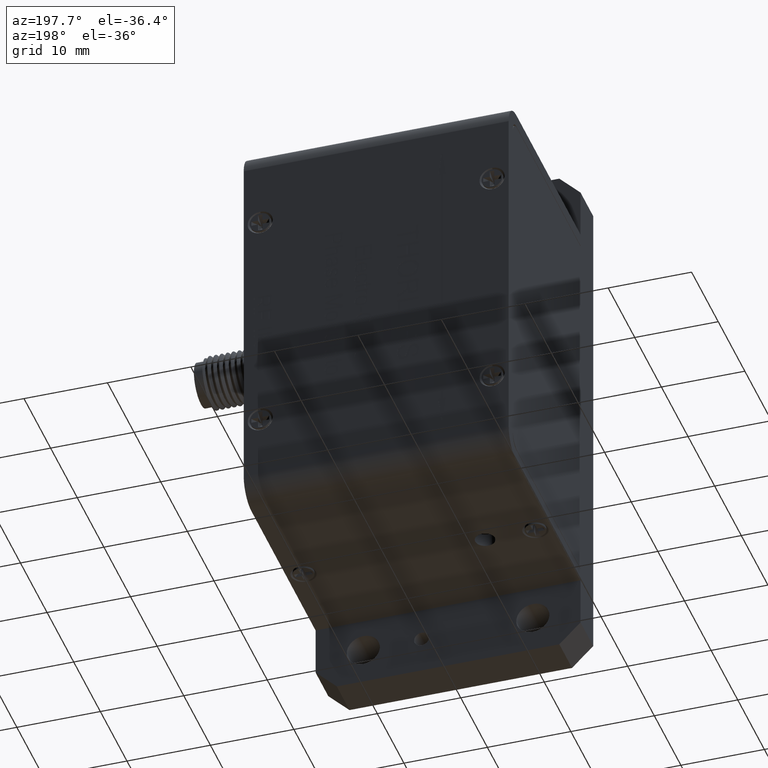
[diagram: clean part render]
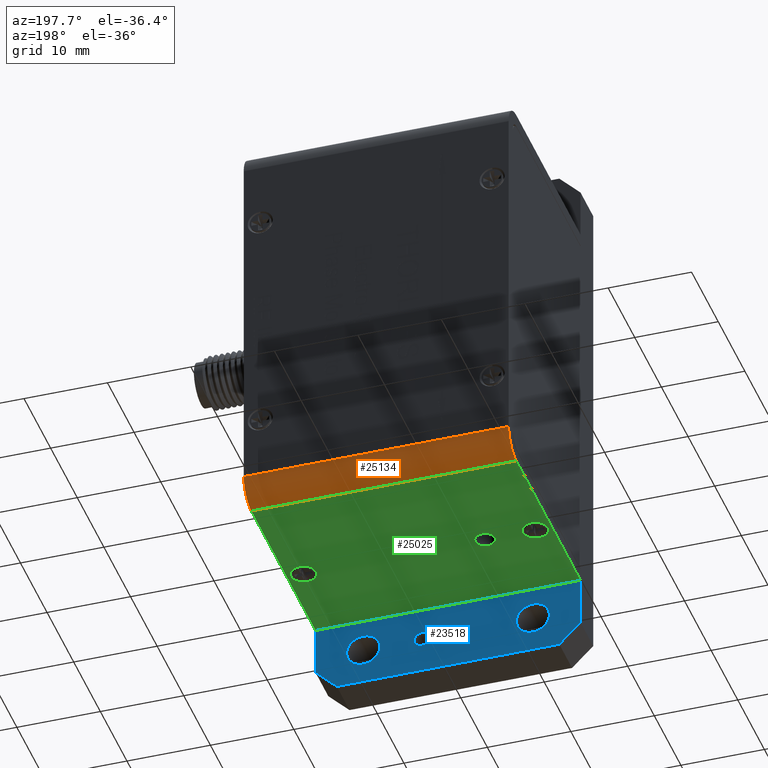
[diagram: same view with three faces highlighted in distinct colors, each labeled with its STEP entity id]
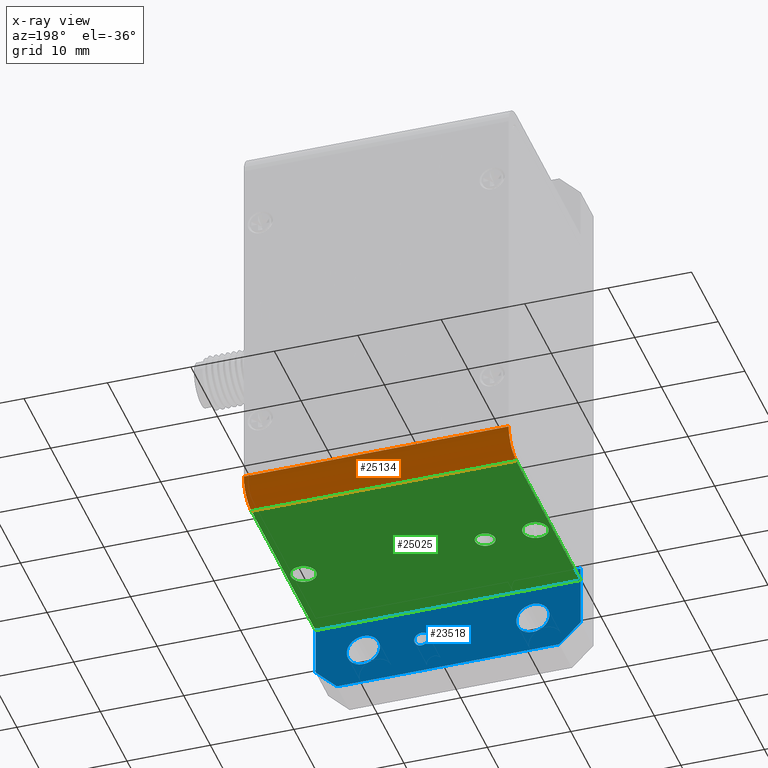
[diagram: x-ray of the same camera — body ghosted, the three highlighted faces saturated]
A machine part, auxiliary view with three faces highlighted in distinct colors.
The next image is the same camera in x-ray (body ghosted, the three faces saturated) — at least one of them is partly hidden behind the body in this view.
Their STEP definitions:

[orange] entity #25134 — the highlighted cylindrical surface (edge-blend (fillet) strip) has radius 2.8575 mm, axis along (-1, -0, -0).
#8734 = DIRECTION ( 'NONE',  ( -1.000000000000000000, -0.0000000000000000000, -0.0000000000000000000 ) ) ;
#8736 = VECTOR ( 'NONE', #8734, 1000.000000000000000 ) ;
#8737 = CARTESIAN_POINT ( 'NONE',  ( 15.87500000000000400, 31.76269999999999200, -21.65349999999999000 ) ) ;
#8738 = LINE ( 'NONE', #8737, #8736 ) ;
#9025 = CARTESIAN_POINT ( 'NONE',  ( 15.87500000000000400, 31.76269999999999200, -21.65349999999999000 ) ) ;
#13158 = EDGE_CURVE ( 'NONE', #13175, #35431, #8738, .T. ) ;
#13175 = VERTEX_POINT ( 'NONE', #9025 ) ;
#25024 = VERTEX_POINT ( 'NONE', #41332 ) ;
#25039 = EDGE_CURVE ( 'NONE', #25024, #25045, #41405, .T. ) ;
#25045 = VERTEX_POINT ( 'NONE', #41401 ) ;
#25115 = EDGE_LOOP ( 'NONE', ( #25122, #25117, #25136, #25135 ) ) ;
#25117 = ORIENTED_EDGE ( 'NONE', *, *, #13158, .F. ) ;
#25122 = ORIENTED_EDGE ( 'NONE', *, *, #25128, .T. ) ;
#25128 = EDGE_CURVE ( 'NONE', #25045, #35431, #41552, .T. ) ;
#25133 = EDGE_CURVE ( 'NONE', #25024, #13175, #41585, .T. ) ;
#25134 = ADVANCED_FACE ( 'NONE', ( #41624 ), #41627, .T. ) ;
#25135 = ORIENTED_EDGE ( 'NONE', *, *, #25039, .T. ) ;
#25136 = ORIENTED_EDGE ( 'NONE', *, *, #25133, .F. ) ;
#28008 = CARTESIAN_POINT ( 'NONE',  ( -15.87499999999999600, 31.76269999999999200, -21.65349999999999000 ) ) ;
#35431 = VERTEX_POINT ( 'NONE', #28008 ) ;
#41332 = CARTESIAN_POINT ( 'NONE',  ( 15.87500000000000400, 28.90520000000000100, -24.51099999999998900 ) ) ;
#41358 = CARTESIAN_POINT ( 'NONE',  ( 15.87500000000000400, 28.90520000000000100, -24.51099999999998900 ) ) ;
#41401 = CARTESIAN_POINT ( 'NONE',  ( -15.87499999999999600, 28.90520000000000100, -24.51099999999998900 ) ) ;
#41403 = DIRECTION ( 'NONE',  ( -1.000000000000000000, -0.0000000000000000000, -0.0000000000000000000 ) ) ;
#41404 = VECTOR ( 'NONE', #41403, 1000.000000000000000 ) ;
#41405 = LINE ( 'NONE', #41358, #41404 ) ;
#41552 = CIRCLE ( 'NONE', #41586, 2.857499999999999000 ) ;
#41560 = CARTESIAN_POINT ( 'NONE',  ( -15.87499999999999600, 28.90520000000000100, -21.65349999999999000 ) ) ;
#41573 = AXIS2_PLACEMENT_3D ( 'NONE', #41622, #41628, #41608 ) ;
#41578 = DIRECTION ( 'NONE',  ( 0.0000000000000000000, 0.0000000000000000000, -1.000000000000000000 ) ) ;
#41579 = DIRECTION ( 'NONE',  ( 1.000000000000000000, 0.0000000000000000000, 0.0000000000000000000 ) ) ;
#41582 = CARTESIAN_POINT ( 'NONE',  ( 15.87500000000000400, 28.90520000000000100, -21.65349999999999000 ) ) ;
#41585 = CIRCLE ( 'NONE', #41592, 2.857499999999999000 ) ;
#41586 = AXIS2_PLACEMENT_3D ( 'NONE', #41560, #41579, #41578 ) ;
#41592 = AXIS2_PLACEMENT_3D ( 'NONE', #41582, #41626, #41625 ) ;
#41608 = DIRECTION ( 'NONE',  ( 0.0000000000000000000, 0.0000000000000000000, 1.000000000000000000 ) ) ;
#41622 = CARTESIAN_POINT ( 'NONE',  ( 15.87500000000000400, 28.90520000000000100, -21.65349999999999000 ) ) ;
#41624 = FACE_OUTER_BOUND ( 'NONE', #25115, .T. ) ;
#41625 = DIRECTION ( 'NONE',  ( 0.0000000000000000000, 0.0000000000000000000, -1.000000000000000000 ) ) ;
#41626 = DIRECTION ( 'NONE',  ( 1.000000000000000000, 0.0000000000000000000, 0.0000000000000000000 ) ) ;
#41627 = CYLINDRICAL_SURFACE ( 'NONE', #41573, 2.857499999999999000 ) ;
#41628 = DIRECTION ( 'NONE',  ( -1.000000000000000000, -0.0000000000000000000, -0.0000000000000000000 ) ) ;

[blue] entity #23518 — the highlighted planar face has unit normal (0, 1, 0).
#6387 = DIRECTION ( 'NONE',  ( 0.0000000000000000000, 0.0000000000000000000, -1.000000000000000000 ) ) ;
#8465 = CARTESIAN_POINT ( 'NONE',  ( 10.16000000000000000, 4.775199999999999900, -30.55937500000000600 ) ) ;
#8619 = CARTESIAN_POINT ( 'NONE',  ( 10.16000000000000000, 4.775199999999999900, -26.59062499999999900 ) ) ;
#8630 = AXIS2_PLACEMENT_3D ( 'NONE', #8698, #8770, #8767 ) ;
#8687 = CIRCLE ( 'NONE', #8630, 1.984375000000003600 ) ;
#8698 = CARTESIAN_POINT ( 'NONE',  ( 10.16000000000000000, 4.775199999999999900, -28.57500000000000300 ) ) ;
#8758 = AXIS2_PLACEMENT_3D ( 'NONE', #8833, #8832, #8830 ) ;
#8767 = DIRECTION ( 'NONE',  ( 0.0000000000000000000, 0.0000000000000000000, -1.000000000000000000 ) ) ;
#8770 = DIRECTION ( 'NONE',  ( -0.0000000000000000000, -1.000000000000000000, -0.0000000000000000000 ) ) ;
#8779 = CIRCLE ( 'NONE', #8758, 0.8889999999999870200 ) ;
#8830 = DIRECTION ( 'NONE',  ( 0.0000000000000000000, 0.0000000000000000000, 1.000000000000000000 ) ) ;
#8832 = DIRECTION ( 'NONE',  ( -0.0000000000000000000, 1.000000000000000000, -0.0000000000000000000 ) ) ;
#8833 = CARTESIAN_POINT ( 'NONE',  ( 3.175000000000000700, 4.775200000000001700, -28.57500000000000300 ) ) ;
#8856 = CARTESIAN_POINT ( 'NONE',  ( 3.175000000000000700, 4.775200000000001700, -27.68600000000001800 ) ) ;
#8858 = CARTESIAN_POINT ( 'NONE',  ( 3.175000000000000700, 4.775200000000001700, -29.46399999999999200 ) ) ;
#9224 = CARTESIAN_POINT ( 'NONE',  ( -10.16000000000000000, 4.775199999999999900, -26.59062499999999900 ) ) ;
#9255 = DIRECTION ( 'NONE',  ( -0.0000000000000000000, -1.000000000000000000, -0.0000000000000000000 ) ) ;
#9258 = CARTESIAN_POINT ( 'NONE',  ( -10.16000000000000000, 4.775199999999999900, -28.57500000000000300 ) ) ;
#9275 = CARTESIAN_POINT ( 'NONE',  ( -10.16000000000000000, 4.775199999999999900, -30.55937500000000600 ) ) ;
#9290 = CIRCLE ( 'NONE', #9296, 1.984375000000003600 ) ;
#9296 = AXIS2_PLACEMENT_3D ( 'NONE', #9258, #9255, #6387 ) ;
#9420 = CARTESIAN_POINT ( 'NONE',  ( -13.33499999999999200, 4.775199999999999900, -33.02000000000000300 ) ) ;
#9431 = FACE_BOUND ( 'NONE', #23532, .T. ) ;
#9432 = PLANE ( 'NONE',  #9446 ) ;
#9434 = FACE_BOUND ( 'NONE', #23459, .T. ) ;
#9446 = AXIS2_PLACEMENT_3D ( 'NONE', #9496, #9495, #9494 ) ;
#9460 = FACE_OUTER_BOUND ( 'NONE', #23565, .T. ) ;
#9466 = FACE_BOUND ( 'NONE', #23561, .T. ) ;
#9494 = DIRECTION ( 'NONE',  ( 0.0000000000000000000, -0.0000000000000000000, 1.000000000000000000 ) ) ;
#9495 = DIRECTION ( 'NONE',  ( 0.0000000000000000000, 1.000000000000000000, 0.0000000000000000000 ) ) ;
#9496 = CARTESIAN_POINT ( 'NONE',  ( -15.87500000000000000, 4.775199999999999900, 33.02000000000000300 ) ) ;
#9568 = CIRCLE ( 'NONE', #9607, 1.984375000000003600 ) ;
#9590 = VECTOR ( 'NONE', #9637, 1000.000000000000000 ) ;
#9591 = CARTESIAN_POINT ( 'NONE',  ( 15.87500000000000400, 4.775199999999999900, -22.85999999999999900 ) ) ;
#9595 = LINE ( 'NONE', #9591, #9590 ) ;
#9596 = CARTESIAN_POINT ( 'NONE',  ( -15.87500000000000000, 4.775199999999999900, -33.02000000000000300 ) ) ;
#9597 = LINE ( 'NONE', #9596, #9642 ) ;
#9607 = AXIS2_PLACEMENT_3D ( 'NONE', #9640, #9636, #9635 ) ;
#9614 = DIRECTION ( 'NONE',  ( 0.0000000000000000000, 0.0000000000000000000, -1.000000000000000000 ) ) ;
#9615 = DIRECTION ( 'NONE',  ( -0.0000000000000000000, -1.000000000000000000, -0.0000000000000000000 ) ) ;
#9616 = AXIS2_PLACEMENT_3D ( 'NONE', #9624, #9615, #9614 ) ;
#9617 = CARTESIAN_POINT ( 'NONE',  ( -15.87500000000000000, 4.775199999999999900, -33.02000000000000300 ) ) ;
#9618 = LINE ( 'NONE', #9617, #9675 ) ;
#9619 = CARTESIAN_POINT ( 'NONE',  ( 13.33499999999998700, 4.775199999999999900, -33.02000000000001000 ) ) ;
#9620 = DIRECTION ( 'NONE',  ( 0.0000000000000000000, 0.0000000000000000000, 1.000000000000000000 ) ) ;
#9621 = DIRECTION ( 'NONE',  ( -0.0000000000000000000, 1.000000000000000000, -0.0000000000000000000 ) ) ;
#9622 = CARTESIAN_POINT ( 'NONE',  ( 3.175000000000000700, 4.775200000000001700, -28.57500000000000300 ) ) ;
#9623 = AXIS2_PLACEMENT_3D ( 'NONE', #9622, #9621, #9620 ) ;
#9624 = CARTESIAN_POINT ( 'NONE',  ( -10.16000000000000000, 4.775199999999999900, -28.57500000000000300 ) ) ;
#9626 = DIRECTION ( 'NONE',  ( -0.7071067811865455700, 0.0000000000000000000, -0.7071067811865494600 ) ) ;
#9627 = VECTOR ( 'NONE', #9626, 1000.000000000000200 ) ;
#9628 = CARTESIAN_POINT ( 'NONE',  ( 31.75000000000008500, 4.775199999999999900, -14.60499999999981900 ) ) ;
#9629 = CIRCLE ( 'NONE', #9616, 1.984375000000003600 ) ;
#9630 = DIRECTION ( 'NONE',  ( -5.253553833969736500E-017, -0.0000000000000000000, -1.000000000000000000 ) ) ;
#9631 = VECTOR ( 'NONE', #9630, 1000.000000000000000 ) ;
#9632 = CARTESIAN_POINT ( 'NONE',  ( 15.87500000000000000, 4.775199999999999900, -33.02000000000000300 ) ) ;
#9633 = LINE ( 'NONE', #9632, #9631 ) ;
#9634 = LINE ( 'NONE', #9628, #9627 ) ;
#9635 = DIRECTION ( 'NONE',  ( 0.0000000000000000000, 0.0000000000000000000, -1.000000000000000000 ) ) ;
#9636 = DIRECTION ( 'NONE',  ( -0.0000000000000000000, -1.000000000000000000, -0.0000000000000000000 ) ) ;
#9637 = DIRECTION ( 'NONE',  ( -1.000000000000000000, 0.0000000000000000000, 0.0000000000000000000 ) ) ;
#9638 = CARTESIAN_POINT ( 'NONE',  ( 15.87500000000000000, 4.775199999999999900, -22.85999999999999900 ) ) ;
#9639 = CIRCLE ( 'NONE', #9623, 0.8889999999999870200 ) ;
#9640 = CARTESIAN_POINT ( 'NONE',  ( 10.16000000000000000, 4.775199999999999900, -28.57500000000000300 ) ) ;
#9641 = DIRECTION ( 'NONE',  ( 0.0000000000000000000, 0.0000000000000000000, 1.000000000000000000 ) ) ;
#9642 = VECTOR ( 'NONE', #9641, 1000.000000000000000 ) ;
#9664 = DIRECTION ( 'NONE',  ( -0.7071067811865484600, -0.0000000000000000000, 0.7071067811865465700 ) ) ;
#9665 = VECTOR ( 'NONE', #9664, 1000.000000000000000 ) ;
#9666 = LINE ( 'NONE', #9671, #9665 ) ;
#9667 = CARTESIAN_POINT ( 'NONE',  ( 15.87499999999999300, 4.775199999999999900, -30.48000000000000000 ) ) ;
#9671 = CARTESIAN_POINT ( 'NONE',  ( -47.62500000000000000, 4.775199999999999900, 1.269999999999917000 ) ) ;
#9672 = CARTESIAN_POINT ( 'NONE',  ( -15.87499999999999600, 4.775199999999999900, -30.48000000000000800 ) ) ;
#9673 = CARTESIAN_POINT ( 'NONE',  ( -15.87500000000000000, 4.775199999999999900, -22.85999999999999900 ) ) ;
#9674 = DIRECTION ( 'NONE',  ( -1.000000000000000000, -0.0000000000000000000, -0.0000000000000000000 ) ) ;
#9675 = VECTOR ( 'NONE', #9674, 1000.000000000000000 ) ;
#23091 = ORIENTED_EDGE ( 'NONE', *, *, #23552, .F. ) ;
#23388 = VERTEX_POINT ( 'NONE', #8465 ) ;
#23396 = EDGE_CURVE ( 'NONE', #23399, #23388, #8687, .T. ) ;
#23399 = VERTEX_POINT ( 'NONE', #8619 ) ;
#23404 = VERTEX_POINT ( 'NONE', #8858 ) ;
#23405 = VERTEX_POINT ( 'NONE', #8856 ) ;
#23406 = EDGE_CURVE ( 'NONE', #23404, #23405, #8779, .T. ) ;
#23447 = EDGE_CURVE ( 'NONE', #23448, #23452, #9290, .T. ) ;
#23448 = VERTEX_POINT ( 'NONE', #9224 ) ;
#23452 = VERTEX_POINT ( 'NONE', #9275 ) ;
#23459 = EDGE_LOOP ( 'NONE', ( #23091, #23556 ) ) ;
#23496 = ORIENTED_EDGE ( 'NONE', *, *, #23560, .T. ) ;
#23497 = ORIENTED_EDGE ( 'NONE', *, *, #23554, .T. ) ;
#23499 = ORIENTED_EDGE ( 'NONE', *, *, #23546, .F. ) ;
#23501 = VERTEX_POINT ( 'NONE', #9420 ) ;
#23518 = ADVANCED_FACE ( 'NONE', ( #9434, #9466, #9460, #9431 ), #9432, .T. ) ;
#23532 = EDGE_LOOP ( 'NONE', ( #23549, #23533 ) ) ;
#23533 = ORIENTED_EDGE ( 'NONE', *, *, #23547, .T. ) ;
#23543 = EDGE_CURVE ( 'NONE', #23566, #23558, #9597, .T. ) ;
#23544 = ORIENTED_EDGE ( 'NONE', *, *, #23551, .T. ) ;
#23545 = ORIENTED_EDGE ( 'NONE', *, *, #23543, .T. ) ;
#23546 = EDGE_CURVE ( 'NONE', #23557, #23558, #9595, .T. ) ;
#23547 = EDGE_CURVE ( 'NONE', #23388, #23399, #9568, .T. ) ;
#23548 = EDGE_CURVE ( 'NONE', #23557, #23562, #9633, .T. ) ;
#23549 = ORIENTED_EDGE ( 'NONE', *, *, #23396, .T. ) ;
#23550 = ORIENTED_EDGE ( 'NONE', *, *, #23548, .T. ) ;
#23551 = EDGE_CURVE ( 'NONE', #23562, #23564, #9634, .T. ) ;
#23552 = EDGE_CURVE ( 'NONE', #23405, #23404, #9639, .T. ) ;
#23553 = EDGE_CURVE ( 'NONE', #23452, #23448, #9629, .T. ) ;
#23554 = EDGE_CURVE ( 'NONE', #23564, #23501, #9618, .T. ) ;
#23556 = ORIENTED_EDGE ( 'NONE', *, *, #23406, .F. ) ;
#23557 = VERTEX_POINT ( 'NONE', #9638 ) ;
#23558 = VERTEX_POINT ( 'NONE', #9673 ) ;
#23559 = ORIENTED_EDGE ( 'NONE', *, *, #23553, .T. ) ;
#23560 = EDGE_CURVE ( 'NONE', #23501, #23566, #9666, .T. ) ;
#23561 = EDGE_LOOP ( 'NONE', ( #23563, #23559 ) ) ;
#23562 = VERTEX_POINT ( 'NONE', #9667 ) ;
#23563 = ORIENTED_EDGE ( 'NONE', *, *, #23447, .T. ) ;
#23564 = VERTEX_POINT ( 'NONE', #9619 ) ;
#23565 = EDGE_LOOP ( 'NONE', ( #23497, #23496, #23545, #23499, #23550, #23544 ) ) ;
#23566 = VERTEX_POINT ( 'NONE', #9672 ) ;

[green] entity #25025 — the highlighted planar face has unit normal (-0, 0, 1).
#965 = EDGE_CURVE ( 'NONE', #2339, #2337, #19300, .T. ) ;
#2273 = VERTEX_POINT ( 'NONE', #36048 ) ;
#2287 = EDGE_CURVE ( 'NONE', #2314, #2294, #36065, .T. ) ;
#2294 = VERTEX_POINT ( 'NONE', #36114 ) ;
#2314 = VERTEX_POINT ( 'NONE', #36129 ) ;
#2331 = EDGE_CURVE ( 'NONE', #2273, #2340, #36188, .T. ) ;
#2337 = VERTEX_POINT ( 'NONE', #36220 ) ;
#2339 = VERTEX_POINT ( 'NONE', #36234 ) ;
#2340 = VERTEX_POINT ( 'NONE', #36219 ) ;
#19287 = CARTESIAN_POINT ( 'NONE',  ( -13.89379999999999700, 15.51940000000000100, -24.51099999999999200 ) ) ;
#19300 = CIRCLE ( 'NONE', #19349, 1.511300000000000100 ) ;
#19320 = DIRECTION ( 'NONE',  ( -1.000000000000000000, 0.0000000000000000000, 0.0000000000000000000 ) ) ;
#19321 = DIRECTION ( 'NONE',  ( -0.0000000000000000000, -0.0000000000000000000, -1.000000000000000000 ) ) ;
#19349 = AXIS2_PLACEMENT_3D ( 'NONE', #19287, #19321, #19320 ) ;
#25024 = VERTEX_POINT ( 'NONE', #41332 ) ;
#25025 = ADVANCED_FACE ( 'NONE', ( #41331, #41323, #41326, #41335 ), #41330, .F. ) ;
#25026 = EDGE_LOOP ( 'NONE', ( #25028, #25027 ) ) ;
#25027 = ORIENTED_EDGE ( 'NONE', *, *, #2331, .T. ) ;
#25028 = ORIENTED_EDGE ( 'NONE', *, *, #25052, .T. ) ;
#25029 = EDGE_LOOP ( 'NONE', ( #25030, #25038, #25060, #25063 ) ) ;
#25030 = ORIENTED_EDGE ( 'NONE', *, *, #25037, .T. ) ;
#25031 = EDGE_CURVE ( 'NONE', #2337, #2339, #41321, .T. ) ;
#25032 = EDGE_LOOP ( 'NONE', ( #25034, #25033 ) ) ;
#25033 = ORIENTED_EDGE ( 'NONE', *, *, #965, .F. ) ;
#25034 = ORIENTED_EDGE ( 'NONE', *, *, #25031, .F. ) ;
#25036 = VERTEX_POINT ( 'NONE', #41354 ) ;
#25037 = EDGE_CURVE ( 'NONE', #25043, #25045, #41348, .T. ) ;
#25038 = ORIENTED_EDGE ( 'NONE', *, *, #25039, .F. ) ;
#25039 = EDGE_CURVE ( 'NONE', #25024, #25045, #41405, .T. ) ;
#25043 = VERTEX_POINT ( 'NONE', #41363 ) ;
#25045 = VERTEX_POINT ( 'NONE', #41401 ) ;
#25052 = EDGE_CURVE ( 'NONE', #2340, #2273, #41396, .T. ) ;
#25056 = EDGE_CURVE ( 'NONE', #25036, #25024, #41423, .T. ) ;
#25059 = ORIENTED_EDGE ( 'NONE', *, *, #25062, .F. ) ;
#25060 = ORIENTED_EDGE ( 'NONE', *, *, #25056, .F. ) ;
#25061 = EDGE_CURVE ( 'NONE', #25036, #25043, #41448, .T. ) ;
#25062 = EDGE_CURVE ( 'NONE', #2294, #2314, #41455, .T. ) ;
#25063 = ORIENTED_EDGE ( 'NONE', *, *, #25061, .T. ) ;
#25064 = EDGE_LOOP ( 'NONE', ( #25059, #25066 ) ) ;
#25066 = ORIENTED_EDGE ( 'NONE', *, *, #2287, .F. ) ;
#36048 = CARTESIAN_POINT ( 'NONE',  ( -9.064624999999995900, 15.51940000000000100, -24.51099999999999200 ) ) ;
#36061 = DIRECTION ( 'NONE',  ( -1.000000000000000000, 0.0000000000000000000, 0.0000000000000000000 ) ) ;
#36062 = DIRECTION ( 'NONE',  ( -0.0000000000000000000, -0.0000000000000000000, -1.000000000000000000 ) ) ;
#36063 = CARTESIAN_POINT ( 'NONE',  ( 13.89380000000000400, 15.51940000000000100, -24.51099999999999200 ) ) ;
#36064 = AXIS2_PLACEMENT_3D ( 'NONE', #36063, #36062, #36061 ) ;
#36065 = CIRCLE ( 'NONE', #36064, 1.511300000000000100 ) ;
#36114 = CARTESIAN_POINT ( 'NONE',  ( 12.38250000000000400, 15.51940000000000100, -24.51099999999999200 ) ) ;
#36129 = CARTESIAN_POINT ( 'NONE',  ( 15.40510000000000400, 15.51940000000000100, -24.51099999999999200 ) ) ;
#36184 = DIRECTION ( 'NONE',  ( 1.000000000000000000, 0.0000000000000000000, 0.0000000000000000000 ) ) ;
#36185 = DIRECTION ( 'NONE',  ( 0.0000000000000000000, 0.0000000000000000000, 1.000000000000000000 ) ) ;
#36186 = CARTESIAN_POINT ( 'NONE',  ( -7.873999999999995200, 15.51940000000000100, -24.51099999999999200 ) ) ;
#36187 = AXIS2_PLACEMENT_3D ( 'NONE', #36186, #36185, #36184 ) ;
#36188 = CIRCLE ( 'NONE', #36187, 1.190625000000000700 ) ;
#36219 = CARTESIAN_POINT ( 'NONE',  ( -6.683374999999994500, 15.51940000000000100, -24.51099999999999200 ) ) ;
#36220 = CARTESIAN_POINT ( 'NONE',  ( -15.40509999999999700, 15.51940000000000100, -24.51099999999999200 ) ) ;
#36234 = CARTESIAN_POINT ( 'NONE',  ( -12.38249999999999900, 15.51940000000000100, -24.51099999999999200 ) ) ;
#41320 = AXIS2_PLACEMENT_3D ( 'NONE', #41353, #41352, #41351 ) ;
#41321 = CIRCLE ( 'NONE', #41320, 1.511300000000000100 ) ;
#41323 = FACE_BOUND ( 'NONE', #25032, .T. ) ;
#41326 = FACE_OUTER_BOUND ( 'NONE', #25029, .T. ) ;
#41330 = PLANE ( 'NONE',  #41337 ) ;
#41331 = FACE_BOUND ( 'NONE', #25026, .T. ) ;
#41332 = CARTESIAN_POINT ( 'NONE',  ( 15.87500000000000400, 28.90520000000000100, -24.51099999999998900 ) ) ;
#41335 = FACE_BOUND ( 'NONE', #25064, .T. ) ;
#41337 = AXIS2_PLACEMENT_3D ( 'NONE', #41362, #41361, #41360 ) ;
#41348 = LINE ( 'NONE', #41357, #41356 ) ;
#41351 = DIRECTION ( 'NONE',  ( -1.000000000000000000, 0.0000000000000000000, 0.0000000000000000000 ) ) ;
#41352 = DIRECTION ( 'NONE',  ( -0.0000000000000000000, -0.0000000000000000000, -1.000000000000000000 ) ) ;
#41353 = CARTESIAN_POINT ( 'NONE',  ( -13.89379999999999700, 15.51940000000000100, -24.51099999999999200 ) ) ;
#41354 = CARTESIAN_POINT ( 'NONE',  ( 15.87500000000000400, 4.775200000000003400, -24.51099999999999200 ) ) ;
#41355 = DIRECTION ( 'NONE',  ( -0.0000000000000000000, 1.000000000000000000, -0.0000000000000000000 ) ) ;
#41356 = VECTOR ( 'NONE', #41355, 1000.000000000000000 ) ;
#41357 = CARTESIAN_POINT ( 'NONE',  ( -15.87499999999999600, 28.90520000000000100, -24.51099999999999200 ) ) ;
#41358 = CARTESIAN_POINT ( 'NONE',  ( 15.87500000000000400, 28.90520000000000100, -24.51099999999998900 ) ) ;
#41360 = DIRECTION ( 'NONE',  ( 1.000000000000000000, 0.0000000000000000000, 0.0000000000000000000 ) ) ;
#41361 = DIRECTION ( 'NONE',  ( -0.0000000000000000000, 0.0000000000000000000, 1.000000000000000000 ) ) ;
#41362 = CARTESIAN_POINT ( 'NONE',  ( 15.87500000000000400, 28.90520000000000100, -24.51099999999999200 ) ) ;
#41363 = CARTESIAN_POINT ( 'NONE',  ( -15.87499999999999600, 4.775200000000003400, -24.51099999999999200 ) ) ;
#41380 = AXIS2_PLACEMENT_3D ( 'NONE', #41416, #41415, #41414 ) ;
#41396 = CIRCLE ( 'NONE', #41380, 1.190625000000000700 ) ;
#41401 = CARTESIAN_POINT ( 'NONE',  ( -15.87499999999999600, 28.90520000000000100, -24.51099999999998900 ) ) ;
#41403 = DIRECTION ( 'NONE',  ( -1.000000000000000000, -0.0000000000000000000, -0.0000000000000000000 ) ) ;
#41404 = VECTOR ( 'NONE', #41403, 1000.000000000000000 ) ;
#41405 = LINE ( 'NONE', #41358, #41404 ) ;
#41409 = CARTESIAN_POINT ( 'NONE',  ( 15.87500000000000400, 4.775200000000003400, -24.51099999999999200 ) ) ;
#41414 = DIRECTION ( 'NONE',  ( 1.000000000000000000, 0.0000000000000000000, 0.0000000000000000000 ) ) ;
#41415 = DIRECTION ( 'NONE',  ( 0.0000000000000000000, 0.0000000000000000000, 1.000000000000000000 ) ) ;
#41416 = CARTESIAN_POINT ( 'NONE',  ( -7.873999999999995200, 15.51940000000000100, -24.51099999999999200 ) ) ;
#41421 = CARTESIAN_POINT ( 'NONE',  ( 13.89380000000000400, 15.51940000000000100, -24.51099999999999200 ) ) ;
#41422 = CARTESIAN_POINT ( 'NONE',  ( 15.87500000000000400, 28.90520000000000100, -24.51099999999999200 ) ) ;
#41423 = LINE ( 'NONE', #41422, #41457 ) ;
#41439 = DIRECTION ( 'NONE',  ( -1.000000000000000000, 0.0000000000000000000, 0.0000000000000000000 ) ) ;
#41443 = DIRECTION ( 'NONE',  ( -1.000000000000000000, -0.0000000000000000000, -0.0000000000000000000 ) ) ;
#41444 = VECTOR ( 'NONE', #41443, 1000.000000000000000 ) ;
#41448 = LINE ( 'NONE', #41409, #41444 ) ;
#41449 = AXIS2_PLACEMENT_3D ( 'NONE', #41421, #41453, #41439 ) ;
#41453 = DIRECTION ( 'NONE',  ( -0.0000000000000000000, -0.0000000000000000000, -1.000000000000000000 ) ) ;
#41455 = CIRCLE ( 'NONE', #41449, 1.511300000000000100 ) ;
#41456 = DIRECTION ( 'NONE',  ( -0.0000000000000000000, 1.000000000000000000, -0.0000000000000000000 ) ) ;
#41457 = VECTOR ( 'NONE', #41456, 1000.000000000000000 ) ;